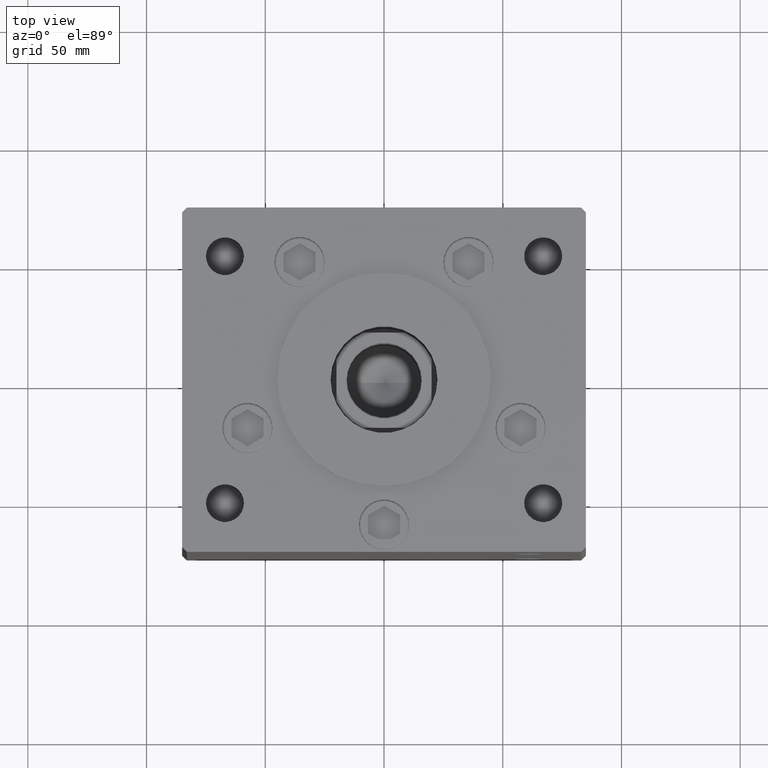
[diagram: clean part render]
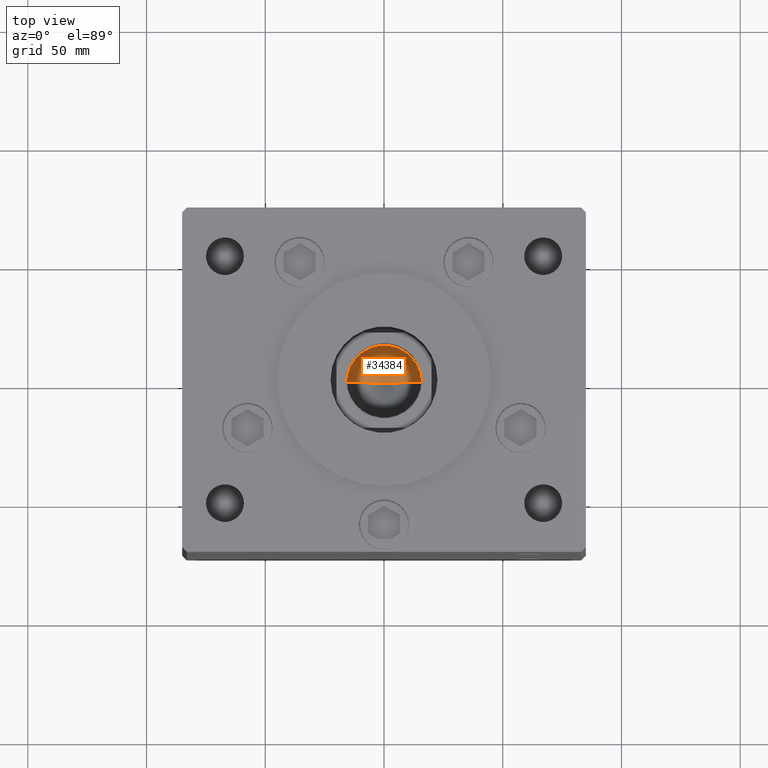
[diagram: same view with one face highlighted and labeled with its STEP entity id]
A machine part, top view. The second image highlights one B-rep face of the part: STEP entity #34384.
In plain terms, the highlighted conical surface has half-angle 59 deg.
Its self-contained STEP definition (entity closure, byte-faithful):
#3479 = CONICAL_SURFACE ( 'NONE', #21183, 15.74999999999998934, 1.029744258676653645 ) ;
#6369 = DIRECTION ( 'NONE',  ( 0.8571673007021118895, 0.000000000000000000, 0.5150380749100549327 ) ) ;
#6642 = EDGE_CURVE ( 'NONE', #15544, #31932, #44296, .T. ) ;
#11367 = CARTESIAN_POINT ( 'NONE',  ( -15.74999999999998934, 1.928818708657080161E-15, 104.0000000000000426 ) ) ;
#11623 = DIRECTION ( 'NONE',  ( -0.8571673007021118895, 1.049727191138618079E-16, 0.5150380749100549327 ) ) ;
#12746 = AXIS2_PLACEMENT_3D ( 'NONE', #51135, #15029, #34281 ) ;
#12914 = VECTOR ( 'NONE', #11623, 1000.000000000000000 ) ;
#15029 = DIRECTION ( 'NONE',  ( -0.000000000000000000, -0.000000000000000000, 1.000000000000000000 ) ) ;
#15544 = VERTEX_POINT ( 'NONE', #51992 ) ;
#16319 = DIRECTION ( 'NONE',  ( -0.000000000000000000, -0.000000000000000000, 1.000000000000000000 ) ) ;
#16514 = ORIENTED_EDGE ( 'NONE', *, *, #38168, .T. ) ;
#21183 = AXIS2_PLACEMENT_3D ( 'NONE', #44251, #16319, #28440 ) ;
#21255 = VERTEX_POINT ( 'NONE', #43062 ) ;
#23491 = CARTESIAN_POINT ( 'NONE',  ( 15.74999999999998934, 0.000000000000000000, 104.0000000000000426 ) ) ;
#28440 = DIRECTION ( 'NONE',  ( 1.000000000000000000, 0.000000000000000000, 0.000000000000000000 ) ) ;
#31532 = EDGE_LOOP ( 'NONE', ( #49031, #50801, #16514 ) ) ;
#31932 = VERTEX_POINT ( 'NONE', #35706 ) ;
#34281 = DIRECTION ( 'NONE',  ( 1.000000000000000000, 0.000000000000000000, 0.000000000000000000 ) ) ;
#34384 = ADVANCED_FACE ( 'NONE', ( #40812 ), #3479, .F. ) ;
#35345 = LINE ( 'NONE', #23491, #46517 ) ;
#35460 = CIRCLE ( 'NONE', #12746, 15.74999999999998934 ) ;
#35706 = CARTESIAN_POINT ( 'NONE',  ( -15.74999999999998934, 1.928818708657080161E-15, 104.0000000000000426 ) ) ;
#38168 = EDGE_CURVE ( 'NONE', #21255, #31932, #35460, .T. ) ;
#40812 = FACE_OUTER_BOUND ( 'NONE', #31532, .T. ) ;
#43062 = CARTESIAN_POINT ( 'NONE',  ( 15.74999999999998934, 0.000000000000000000, 104.0000000000000426 ) ) ;
#43181 = EDGE_CURVE ( 'NONE', #15544, #21255, #35345, .T. ) ;
#44251 = CARTESIAN_POINT ( 'NONE',  ( 0.000000000000000000, 0.000000000000000000, 104.0000000000000426 ) ) ;
#44296 = LINE ( 'NONE', #11367, #12914 ) ;
#46517 = VECTOR ( 'NONE', #6369, 1000.000000000000000 ) ;
#49031 = ORIENTED_EDGE ( 'NONE', *, *, #6642, .F. ) ;
#50801 = ORIENTED_EDGE ( 'NONE', *, *, #43181, .T. ) ;
#51135 = CARTESIAN_POINT ( 'NONE',  ( 0.000000000000000000, 0.000000000000000000, 104.0000000000000426 ) ) ;
#51992 = CARTESIAN_POINT ( 'NONE',  ( -1.480675244360640996E-14, 0.000000000000000000, 94.53644525031596402 ) ) ;